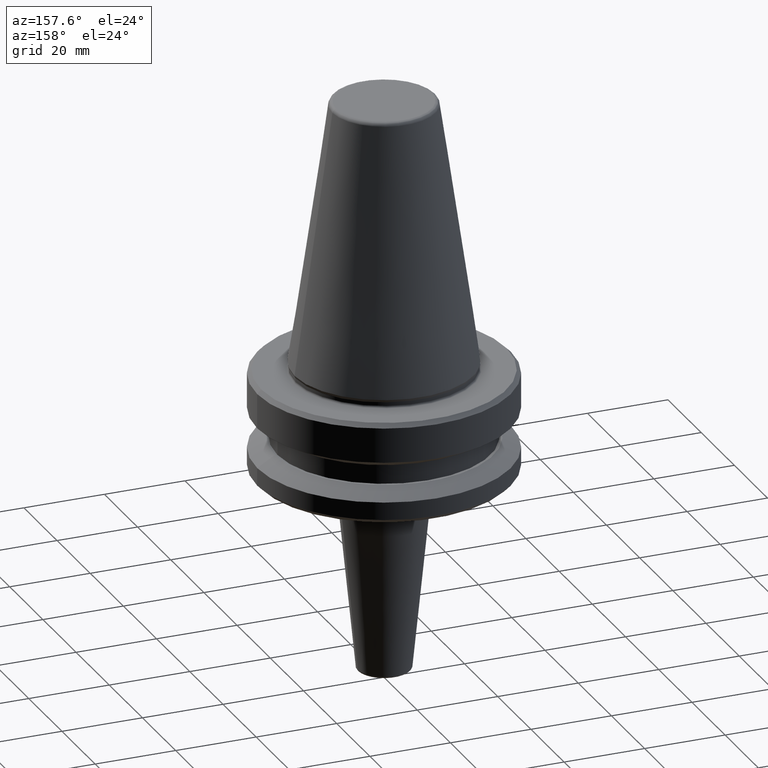
[diagram: clean part render]
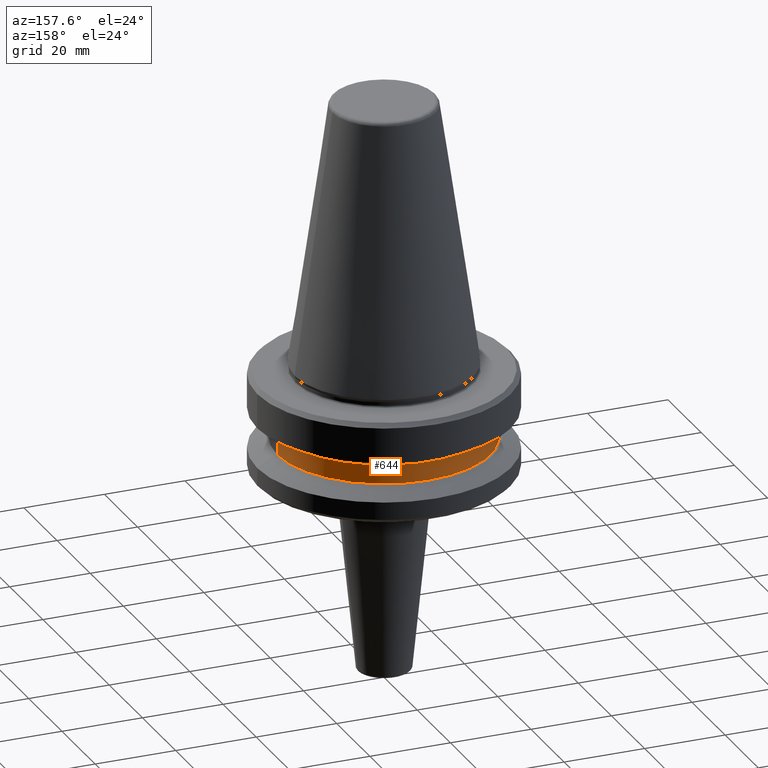
[diagram: same view with one face highlighted and labeled with its STEP entity id]
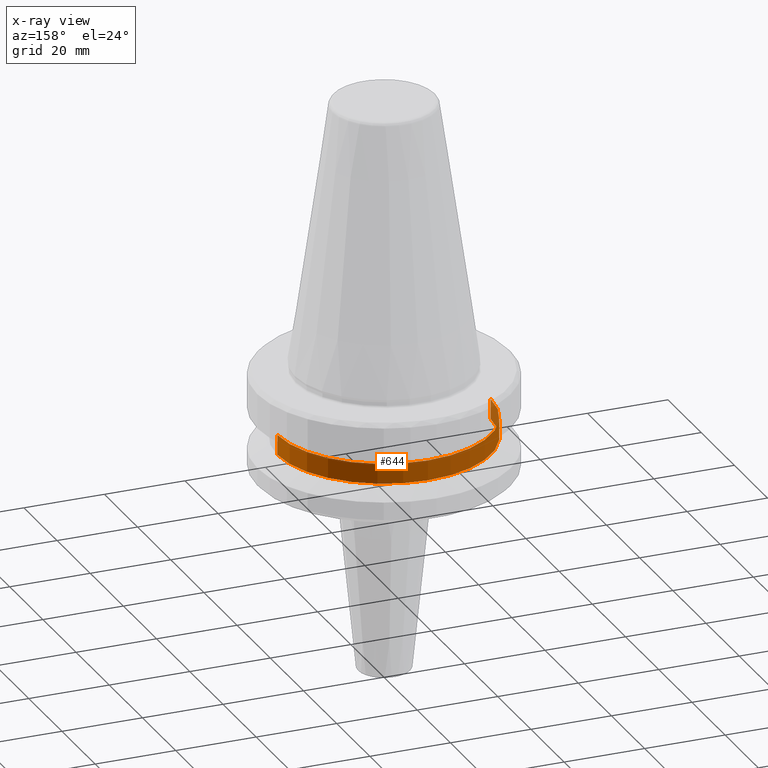
[diagram: x-ray of the same camera — body ghosted, the highlighted face saturated]
A machine part, auxiliary view. The second image highlights one B-rep face of the part: STEP entity #644.
The next image is the same camera in x-ray: the body ghosted, the highlighted face saturated — about 3% of this face is hidden behind the body in this view.
In plain terms, the highlighted cylindrical surface (partial cylindrical patch) has radius 26.5 mm, axis along (-0, -0, 1).
Its self-contained STEP definition (entity closure, byte-faithful):
#32 = CARTESIAN_POINT ( 'NONE',  ( 0.0000000000000000000, 0.0000000000000000000, 6.357346922996331500 ) ) ;
#36 = VERTEX_POINT ( 'NONE', #105 ) ;
#56 = DIRECTION ( 'NONE',  ( 1.000000000000000000, 0.0000000000000000000, 0.0000000000000000000 ) ) ;
#57 = EDGE_CURVE ( 'NONE', #460, #550, #716, .T. ) ;
#105 = CARTESIAN_POINT ( 'NONE',  ( 26.50000000000019200, 0.0000000000000000000, -79.50000000000012800 ) ) ;
#121 = EDGE_CURVE ( 'NONE', #36, #550, #859, .T. ) ;
#147 = CARTESIAN_POINT ( 'NONE',  ( -26.50000000000019200, 3.245314017740509400E-015, 6.357346922996331500 ) ) ;
#327 = ORIENTED_EDGE ( 'NONE', *, *, #121, .F. ) ;
#383 = CARTESIAN_POINT ( 'NONE',  ( 26.50000000000019200, 0.0000000000000000000, -84.50000000000068200 ) ) ;
#404 = CARTESIAN_POINT ( 'NONE',  ( 0.0000000000000000000, 0.0000000000000000000, -79.50000000000012800 ) ) ;
#425 = CARTESIAN_POINT ( 'NONE',  ( -26.50000000000019200, 3.245314017740509400E-015, -84.50000000000068200 ) ) ;
#430 = DIRECTION ( 'NONE',  ( 1.000000000000000000, 0.0000000000000000000, 0.0000000000000000000 ) ) ;
#437 = ORIENTED_EDGE ( 'NONE', *, *, #883, .T. ) ;
#456 = CARTESIAN_POINT ( 'NONE',  ( 0.0000000000000000000, 0.0000000000000000000, -84.50000000000068200 ) ) ;
#460 = VERTEX_POINT ( 'NONE', #425 ) ;
#504 = LINE ( 'NONE', #781, #710 ) ;
#508 = VECTOR ( 'NONE', #603, 1000.000000000000000 ) ;
#545 = DIRECTION ( 'NONE',  ( 1.000000000000000000, 0.0000000000000000000, 0.0000000000000000000 ) ) ;
#550 = VERTEX_POINT ( 'NONE', #924 ) ;
#566 = FACE_OUTER_BOUND ( 'NONE', #1004, .T. ) ;
#603 = DIRECTION ( 'NONE',  ( -0.0000000000000000000, -0.0000000000000000000, 1.000000000000000000 ) ) ;
#616 = VERTEX_POINT ( 'NONE', #383 ) ;
#644 = ADVANCED_FACE ( 'NONE', ( #566 ), #917, .T. ) ;
#693 = DIRECTION ( 'NONE',  ( -0.0000000000000000000, -0.0000000000000000000, 1.000000000000000000 ) ) ;
#710 = VECTOR ( 'NONE', #693, 1000.000000000000000 ) ;
#716 = LINE ( 'NONE', #147, #508 ) ;
#723 = AXIS2_PLACEMENT_3D ( 'NONE', #404, #888, #430 ) ;
#748 = ORIENTED_EDGE ( 'NONE', *, *, #975, .F. ) ;
#756 = ORIENTED_EDGE ( 'NONE', *, *, #57, .T. ) ;
#763 = DIRECTION ( 'NONE',  ( -0.0000000000000000000, -0.0000000000000000000, 1.000000000000000000 ) ) ;
#768 = AXIS2_PLACEMENT_3D ( 'NONE', #32, #763, #56 ) ;
#770 = AXIS2_PLACEMENT_3D ( 'NONE', #456, #1043, #545 ) ;
#781 = CARTESIAN_POINT ( 'NONE',  ( 26.50000000000019200, 0.0000000000000000000, 6.357346922996331500 ) ) ;
#850 = CIRCLE ( 'NONE', #770, 26.50000000000019200 ) ;
#859 = CIRCLE ( 'NONE', #723, 26.50000000000019200 ) ;
#883 = EDGE_CURVE ( 'NONE', #616, #460, #850, .T. ) ;
#888 = DIRECTION ( 'NONE',  ( -0.0000000000000000000, -0.0000000000000000000, 1.000000000000000000 ) ) ;
#917 = CYLINDRICAL_SURFACE ( 'NONE', #768, 26.50000000000019200 ) ;
#924 = CARTESIAN_POINT ( 'NONE',  ( -26.50000000000019200, 3.245314017740509400E-015, -79.50000000000012800 ) ) ;
#975 = EDGE_CURVE ( 'NONE', #616, #36, #504, .T. ) ;
#1004 = EDGE_LOOP ( 'NONE', ( #437, #756, #327, #748 ) ) ;
#1043 = DIRECTION ( 'NONE',  ( -0.0000000000000000000, -0.0000000000000000000, 1.000000000000000000 ) ) ;